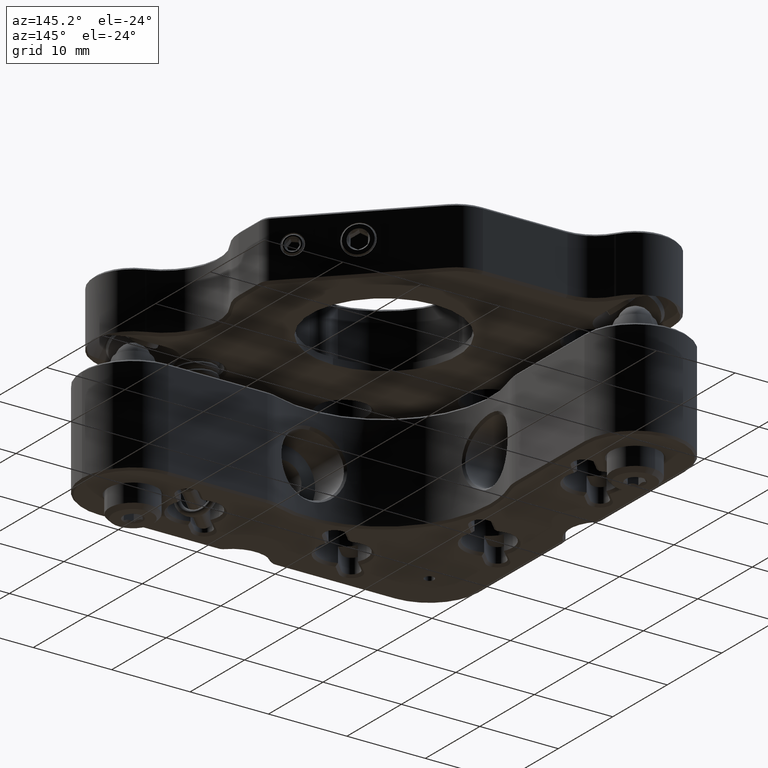
[diagram: clean part render]
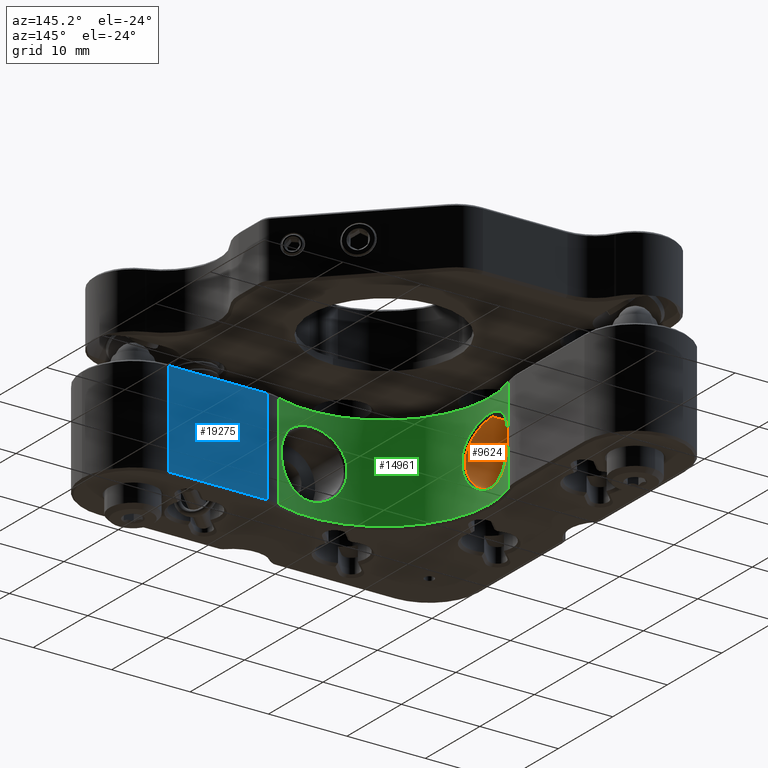
[diagram: same view with three faces highlighted in distinct colors, each labeled with its STEP entity id]
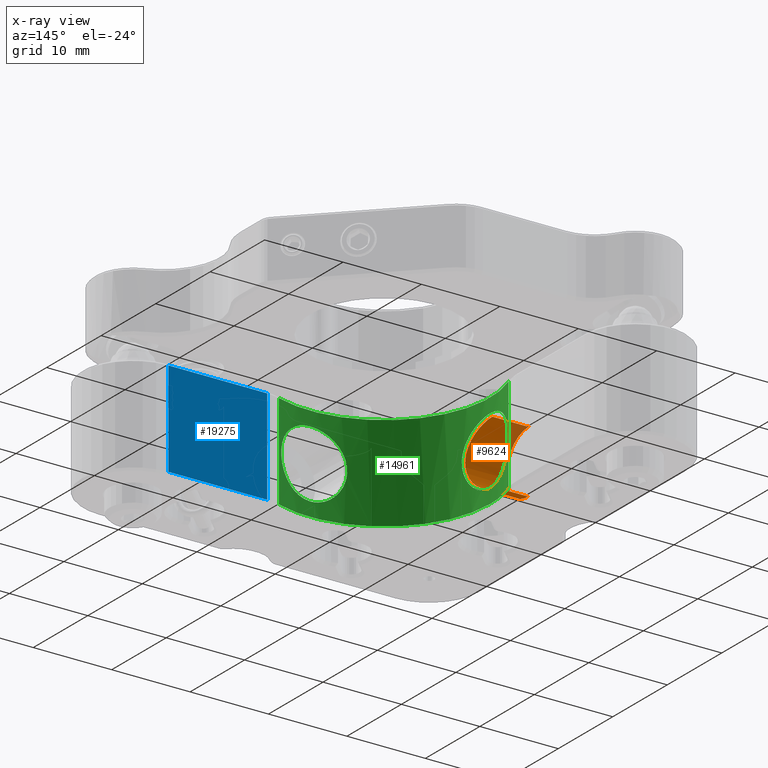
[diagram: x-ray of the same camera — body ghosted, the three highlighted faces saturated]
A machine part, auxiliary view with three faces highlighted in distinct colors.
The next image is the same camera in x-ray (body ghosted, the three faces saturated) — at least one of them is partly hidden behind the body in this view.
Their STEP definitions:

[orange] entity #9624 — the highlighted cylindrical surface (partial cylindrical patch) has radius 4 mm, axis along (1, 0, 0).
#78 = CARTESIAN_POINT ( 'NONE',  ( -13.57166400461005473, -2.326143352549041143, 3.254729315546407875 ) ) ;
#221 = CARTESIAN_POINT ( 'NONE',  ( -13.27806458843194726, -3.497233812875231163, -1.942444645300019923 ) ) ;
#367 = CARTESIAN_POINT ( 'NONE',  ( -13.42555148010303334, -2.970133300024092371, -2.679237460104181068 ) ) ;
#505 = CARTESIAN_POINT ( 'NONE',  ( -13.44422657971147395, -2.896174072448570502, -2.759102043015141170 ) ) ;
#651 = CARTESIAN_POINT ( 'NONE',  ( -13.20836817534865126, -3.718496972045392202, -1.474129643534868972 ) ) ;
#802 = CARTESIAN_POINT ( 'NONE',  ( -13.12205781214771072, -3.974134224172096719, -0.4587821613518011654 ) ) ;
#950 = CARTESIAN_POINT ( 'NONE',  ( -13.80000088772314015, -0.1318999269200013535, -3.999999999999994227 ) ) ;
#1122 = CARTESIAN_POINT ( 'NONE',  ( -13.67239728391914788, -1.741925273435980470, 3.600940616732140054 ) ) ;
#1173 = VERTEX_POINT ( 'NONE', #24544 ) ;
#1220 = CARTESIAN_POINT ( 'NONE',  ( -13.44979966849470365, -2.873656210754053308, -2.782483974404535765 ) ) ;
#1364 = CARTESIAN_POINT ( 'NONE',  ( -13.52441785086375248, -2.552663946782309345, -3.079604563427337904 ) ) ;
#1495 = CARTESIAN_POINT ( 'NONE',  ( -13.64047433250195596, -1.946309522186484120, -3.494584628816626459 ) ) ;
#1530 = CARTESIAN_POINT ( 'NONE',  ( -13.77828411483798554, -0.7206237387213708656, 3.934692721475355981 ) ) ;
#1658 = CARTESIAN_POINT ( 'NONE',  ( -13.68527048544076052, -1.652949305539173519, 3.643084754323268726 ) ) ;
#1797 = CARTESIAN_POINT ( 'NONE',  ( -13.54763019597272056, -2.444070682607322187, 3.166789444447637436 ) ) ;
#1925 = CARTESIAN_POINT ( 'NONE',  ( -13.20806596400888111, -3.719515770793843323, 1.473004173863139421 ) ) ;
#1949 = CARTESIAN_POINT ( 'NONE',  ( -12.39999999999999680, -2.144366948876982281E-15, 0.000000000000000000 ) ) ;
#2062 = CARTESIAN_POINT ( 'NONE',  ( -13.33083568880781122, -3.318838351041154766, 2.232798049113900341 ) ) ;
#2205 = CARTESIAN_POINT ( 'NONE',  ( -13.23267782768713197, -3.642964241691125871, 1.652224054136918419 ) ) ;
#2342 = CARTESIAN_POINT ( 'NONE',  ( -13.43032051876433819, -2.951426487396871856, 2.699834975180579910 ) ) ;
#2484 = CARTESIAN_POINT ( 'NONE',  ( -13.42169741406537042, -2.985179602886798733, -2.662487971333912018 ) ) ;
#2626 = CARTESIAN_POINT ( 'NONE',  ( -13.43262623173441561, -2.942428817025287024, -2.709827434204137298 ) ) ;
#2759 = CARTESIAN_POINT ( 'NONE',  ( -13.39873970703109585, -3.073171236683235552, -2.560548325497332467 ) ) ;
#2911 = CARTESIAN_POINT ( 'NONE',  ( -13.20241998374256198, -3.736765537712078977, -1.427762284986404895 ) ) ;
#3058 = CARTESIAN_POINT ( 'NONE',  ( -13.76989168038382338, -0.8500088274253908560, -3.909202059857344480 ) ) ;
#3199 = CARTESIAN_POINT ( 'NONE',  ( -13.69286520948214836, -1.596553117651938081, -3.667597281261249620 ) ) ;
#3333 = CARTESIAN_POINT ( 'NONE',  ( -13.79999999999997939, -1.997143452840186914E-15, -3.999999999999996447 ) ) ;
#3469 = CARTESIAN_POINT ( 'NONE',  ( -13.68693401291196743, -1.640361989098042317, -3.648424753567808043 ) ) ;
#3609 = CARTESIAN_POINT ( 'NONE',  ( -13.49159700096267045, -2.698766974664312368, -2.952400292712121566 ) ) ;
#3773 = CARTESIAN_POINT ( 'NONE',  ( -13.71626424065185823, -1.412347883708210183, 3.742507999668336804 ) ) ;
#3836 = ORIENTED_EDGE ( 'NONE', *, *, #27445, .T. ) ;
#3901 = CARTESIAN_POINT ( 'NONE',  ( -13.27409113733304835, -3.510144107424849835, 1.918105097676215731 ) ) ;
#4048 = CARTESIAN_POINT ( 'NONE',  ( -13.25968956291671752, -3.557083521685638683, 1.830807072488882747 ) ) ;
#4182 = CARTESIAN_POINT ( 'NONE',  ( -13.42916691746885327, -2.955961114565347714, 2.694868544222252194 ) ) ;
#4327 = CARTESIAN_POINT ( 'NONE',  ( -13.40662861591669142, -3.043222468528779867, 2.595970530244385177 ) ) ;
#4470 = CARTESIAN_POINT ( 'NONE',  ( -13.39631610983443899, -3.082250009018921322, 2.549468303811452508 ) ) ;
#4610 = CARTESIAN_POINT ( 'NONE',  ( -13.37307323835335993, -3.168538477778969575, -2.441816144970118341 ) ) ;
#4751 = CARTESIAN_POINT ( 'NONE',  ( -13.12486447330613082, -3.966118429387362809, -0.5236635682904977607 ) ) ;
#4900 = CARTESIAN_POINT ( 'NONE',  ( -13.11522360253787411, -3.993625832840725920, 0.2616532941229264275 ) ) ;
#5046 = CARTESIAN_POINT ( 'NONE',  ( -13.15179329221342819, -3.888215986786831113, -0.9430920296735196828 ) ) ;
#5200 = CARTESIAN_POINT ( 'NONE',  ( -13.39092058852652478, -3.102474183400438790, -2.524823739099941289 ) ) ;
#5309 = CARTESIAN_POINT ( 'NONE',  ( -13.79999999999997939, -1.997143452840186914E-15, -3.999999999999996447 ) ) ;
#5480 = CARTESIAN_POINT ( 'NONE',  ( -13.50858252632208512, -2.624416540349230331, -3.018985108877545898 ) ) ;
#5512 = CARTESIAN_POINT ( 'NONE',  ( -13.61681413622223680, -2.084882131390615623, 3.413844438652077429 ) ) ;
#5616 = CARTESIAN_POINT ( 'NONE',  ( -13.47345681060055433, -2.776176237142022440, -2.879912820770353044 ) ) ;
#5746 = CARTESIAN_POINT ( 'NONE',  ( -13.60170378645692857, -2.169166048320642748, -3.361464169986446038 ) ) ;
#5782 = CARTESIAN_POINT ( 'NONE',  ( -12.39999999999999680, -2.144366948876982281E-15, -3.999999999999995559 ) ) ;
#5876 = CARTESIAN_POINT ( 'NONE',  ( -13.79122984857118084, -0.4623326118401305251, -3.973745447702127009 ) ) ;
#6032 = VERTEX_POINT ( 'NONE', #5309 ) ;
#6039 = CARTESIAN_POINT ( 'NONE',  ( -13.46679122548377627, -2.803940587527459893, 2.852731183550698990 ) ) ;
#6182 = CARTESIAN_POINT ( 'NONE',  ( -13.29283708508410555, -3.448259552998462318, 2.027452497508413387 ) ) ;
#6205 = DIRECTION ( 'NONE',  ( 0.000000000000000000, 0.000000000000000000, -1.000000000000000000 ) ) ;
#6324 = CARTESIAN_POINT ( 'NONE',  ( -13.42091622204998025, -2.988315054724355324, 2.659199640835711698 ) ) ;
#6458 = CARTESIAN_POINT ( 'NONE',  ( -13.47676346315072671, -2.762174747040058609, 2.893208683928066183 ) ) ;
#6596 = CARTESIAN_POINT ( 'NONE',  ( -13.43300507305069758, -2.940850267267360429, 2.711366541133486852 ) ) ;
#6622 = DIRECTION ( 'NONE',  ( 1.000000000000000000, -0.000000000000000000, -0.000000000000000000 ) ) ;
#6737 = CARTESIAN_POINT ( 'NONE',  ( -13.16618336199114836, -3.845821352991557251, 1.101862342932082406 ) ) ;
#6875 = CARTESIAN_POINT ( 'NONE',  ( -13.42633157843720682, -2.967080237152701638, -2.682618134180745351 ) ) ;
#7027 = CARTESIAN_POINT ( 'NONE',  ( -13.17913131964797735, -3.807246030932696534, -1.228369034470118359 ) ) ;
#7172 = CARTESIAN_POINT ( 'NONE',  ( -13.33856105475765119, -3.292031303603973669, -2.272843367697755745 ) ) ;
#7311 = CARTESIAN_POINT ( 'NONE',  ( -13.14947464185156356, -3.894934756390884711, 0.9113361903775930584 ) ) ;
#7455 = CARTESIAN_POINT ( 'NONE',  ( -13.64493909759149837, -1.919042278035010707, -3.509632348156913384 ) ) ;
#7488 = CARTESIAN_POINT ( 'NONE',  ( -13.72713009783129579, -1.319998041990355864, 3.776915524480582320 ) ) ;
#7558 = CIRCLE ( 'NONE', #9831, 3.999999999999998224 ) ;
#7627 = CARTESIAN_POINT ( 'NONE',  ( -13.76289572295192976, -0.9444822865710891246, 3.887865049744031243 ) ) ;
#7667 = ORIENTED_EDGE ( 'NONE', *, *, #15128, .F. ) ;
#7730 = CARTESIAN_POINT ( 'NONE',  ( -13.45961718699646248, -2.833580630045356319, -2.823268561986767899 ) ) ;
#7861 = CARTESIAN_POINT ( 'NONE',  ( -13.69852974314882310, -1.553952472161300946, -3.685853635257514860 ) ) ;
#7996 = CARTESIAN_POINT ( 'NONE',  ( -13.58262093854655106, -2.269594454988866250, -3.293833816947800308 ) ) ;
#8033 = CARTESIAN_POINT ( 'NONE',  ( -13.74581110289778962, -1.136922583144321930, 3.835155649733159144 ) ) ;
#8037 = VECTOR ( 'NONE', #14302, 1000.000000000000000 ) ;
#8162 = CARTESIAN_POINT ( 'NONE',  ( -13.40260586794795472, -3.058524751781868556, 2.577950104038224666 ) ) ;
#8297 = CARTESIAN_POINT ( 'NONE',  ( -13.30778673207753826, -3.398128963357720966, 2.111148939886156040 ) ) ;
#8438 = CARTESIAN_POINT ( 'NONE',  ( -13.59190641964755741, -2.220923878748073843, 3.326792845172665825 ) ) ;
#8587 = CARTESIAN_POINT ( 'NONE',  ( -13.48513775838291018, -2.726659408463888212, 2.926839892786377018 ) ) ;
#8722 = CARTESIAN_POINT ( 'NONE',  ( -13.55581183652489408, -2.404359298001171652, 3.196890335879011058 ) ) ;
#8863 = CARTESIAN_POINT ( 'NONE',  ( -13.16043488999975786, -3.862773226042596431, -1.039275370480061467 ) ) ;
#9006 = CARTESIAN_POINT ( 'NONE',  ( -13.17905858073679326, -3.807432708180876535, 1.226579399311761964 ) ) ;
#9150 = CARTESIAN_POINT ( 'NONE',  ( -13.31029480528192721, -3.389527748833155663, -2.124408996753734957 ) ) ;
#9295 = CARTESIAN_POINT ( 'NONE',  ( -13.13564736902080377, -3.935112394590011942, -0.7204718084343165740 ) ) ;
#9445 = CARTESIAN_POINT ( 'NONE',  ( -13.13106287530230354, -3.948400795642535765, 0.6541752675658728533 ) ) ;
#9587 = CARTESIAN_POINT ( 'NONE',  ( -13.57404775751621706, -2.313727632141954871, -3.263180126834151373 ) ) ;
#9624 = ADVANCED_FACE ( 'NONE', ( #17278 ), #19674, .F. ) ;
#9759 = CARTESIAN_POINT ( 'NONE',  ( -13.66576787522298808, -1.786573759843854914, 3.579122224184651646 ) ) ;
#9831 = AXIS2_PLACEMENT_3D ( 'NONE', #19681, #18000, #21674 ) ;
#9868 = CARTESIAN_POINT ( 'NONE',  ( -13.46727564614021233, -2.802060459864092579, -2.854825568019124571 ) ) ;
#9903 = CARTESIAN_POINT ( 'NONE',  ( -13.60012518795196712, -2.177020779318024069, 3.355754665690037886 ) ) ;
#10006 = CARTESIAN_POINT ( 'NONE',  ( -13.72001106511574697, -1.382602112059601263, -3.754462295643715919 ) ) ;
#10137 = CARTESIAN_POINT ( 'NONE',  ( -13.49271167316750208, -2.693940935430762185, -2.956804509661709268 ) ) ;
#10170 = CARTESIAN_POINT ( 'NONE',  ( -13.79781321186610832, -0.2631424943829228646, 3.993487035541912533 ) ) ;
#10439 = CARTESIAN_POINT ( 'NONE',  ( -13.53031922614530203, -2.525459533165777870, 3.101956087724513811 ) ) ;
#10576 = CARTESIAN_POINT ( 'NONE',  ( -13.19633884184931638, -3.755397183668096606, 1.380023072014205932 ) ) ;
#10594 = CARTESIAN_POINT ( 'NONE',  ( -13.80000000185195397, -7.215996806823236693E-13, 4.000000000027571723 ) ) ;
#10716 = CARTESIAN_POINT ( 'NONE',  ( -13.53763772477006100, -2.491341083909849985, 3.129496945699880239 ) ) ;
#10862 = CARTESIAN_POINT ( 'NONE',  ( -13.50476749550221456, -2.641202636354975652, 3.004089956344579093 ) ) ;
#10998 = CARTESIAN_POINT ( 'NONE',  ( -13.16647304518895467, -3.844923497524841416, -1.103482482733344039 ) ) ;
#11135 = CARTESIAN_POINT ( 'NONE',  ( -13.26698767488752750, -3.533304895767582110, -1.875097326785492680 ) ) ;
#11281 = CARTESIAN_POINT ( 'NONE',  ( -13.34854222041565919, -3.256940858550043227, -2.323054156426411332 ) ) ;
#11421 = CARTESIAN_POINT ( 'NONE',  ( -13.28750999018398815, -3.466112421796022414, -1.997586664235592835 ) ) ;
#11536 = CARTESIAN_POINT ( 'NONE',  ( -18.39999999999999503, -2.144366948876982281E-15, -3.999999999999998224 ) ) ;
#11571 = CARTESIAN_POINT ( 'NONE',  ( -13.24566856102838130, -3.601885400606736010, -1.739965455040130005 ) ) ;
#11725 = CARTESIAN_POINT ( 'NONE',  ( -13.48178902512324839, -2.740870505262400503, -2.913398696043848268 ) ) ;
#11860 = CARTESIAN_POINT ( 'NONE',  ( -13.78859813327916939, -0.5257167359180743293, -3.965844097551931569 ) ) ;
#11894 = CARTESIAN_POINT ( 'NONE',  ( -13.77618569667274073, -0.7545004696701954616, 3.928328923384498239 ) ) ;
#11997 = CARTESIAN_POINT ( 'NONE',  ( -13.45819134933974226, -2.839437114035035403, -2.817381441024948252 ) ) ;
#12036 = CARTESIAN_POINT ( 'NONE',  ( -13.70466920333310057, -1.506584565060810954, 3.705563409984821366 ) ) ;
#12140 = CARTESIAN_POINT ( 'NONE',  ( -13.70864590618863232, -1.475993068445078382, -3.718334218751519593 ) ) ;
#12169 = CARTESIAN_POINT ( 'NONE',  ( -13.76993240031077015, -0.8493192922340805362, 3.909323866855511032 ) ) ;
#12274 = CARTESIAN_POINT ( 'NONE',  ( -13.77843746785677226, -0.7202835677616580279, -3.935170559646243404 ) ) ;
#12305 = AXIS2_PLACEMENT_3D ( 'NONE', #1949, #6622, #6205 ) ;
#12433 = CARTESIAN_POINT ( 'NONE',  ( -13.70876611009119372, -1.474006178493159291, 3.718655463734242161 ) ) ;
#12573 = CARTESIAN_POINT ( 'NONE',  ( -13.35394815950518677, -3.237521953038961176, 2.349362803870628014 ) ) ;
#12705 = CARTESIAN_POINT ( 'NONE',  ( -13.23697763434474517, -3.629427594327665929, 1.681765242403961969 ) ) ;
#12838 = CARTESIAN_POINT ( 'NONE',  ( -13.58155063264124074, -2.275612037223874839, 3.290138977111827234 ) ) ;
#12984 = CARTESIAN_POINT ( 'NONE',  ( -13.47234650672643852, -2.780789149993271092, 2.875376466163177991 ) ) ;
#13005 = EDGE_CURVE ( 'NONE', #1173, #21646, #19922, .T. ) ;
#13127 = CARTESIAN_POINT ( 'NONE',  ( -13.39541259858229694, -3.085647719384466914, 2.545360627286501920 ) ) ;
#13271 = CARTESIAN_POINT ( 'NONE',  ( -13.38336180470950509, -3.130608836602443823, -2.489948180295561198 ) ) ;
#13420 = CARTESIAN_POINT ( 'NONE',  ( -13.32822084133831275, -3.327912483715582681, -2.219245335992317880 ) ) ;
#13567 = CARTESIAN_POINT ( 'NONE',  ( -13.15721792287182623, -3.872297541642238716, 1.006372381853581022 ) ) ;
#13713 = CARTESIAN_POINT ( 'NONE',  ( -13.32658856296541217, -3.333565648589437824, -2.210749895776436880 ) ) ;
#13860 = CARTESIAN_POINT ( 'NONE',  ( -13.13160139352779687, -3.946775270990888096, -0.6536695564087539045 ) ) ;
#14032 = CARTESIAN_POINT ( 'NONE',  ( -13.80000000185195397, -7.215996806823236693E-13, 4.000000000027571723 ) ) ;
#14135 = CARTESIAN_POINT ( 'NONE',  ( -13.76531145587326499, -0.9118422071732141809, -3.895233129187047449 ) ) ;
#14169 = CARTESIAN_POINT ( 'NONE',  ( -13.60927612260312536, -2.127204416520068531, 3.387769949918046031 ) ) ;
#14267 = CARTESIAN_POINT ( 'NONE',  ( -13.64691679577734362, -1.906845958993369061, -3.516279977745587093 ) ) ;
#14302 = DIRECTION ( 'NONE',  ( 1.000000000000000000, -0.000000000000000000, -0.000000000000000000 ) ) ;
#14408 = CARTESIAN_POINT ( 'NONE',  ( -13.73979206207085291, -1.198265838331111555, -3.816447078878007826 ) ) ;
#14547 = CARTESIAN_POINT ( 'NONE',  ( -13.68071802820306004, -1.684441137840288816, -3.628184555909765407 ) ) ;
#14711 = CARTESIAN_POINT ( 'NONE',  ( -13.45129032410401670, -2.867878262657139299, 2.788980377063110527 ) ) ;
#14853 = CARTESIAN_POINT ( 'NONE',  ( -13.50038854340882999, -2.660457518737382454, 2.986978598716801603 ) ) ;
#14993 = CARTESIAN_POINT ( 'NONE',  ( -13.38157015669864336, -3.137545158454561278, 2.482155298921604469 ) ) ;
#15084 = ORIENTED_EDGE ( 'NONE', *, *, #27415, .F. ) ;
#15128 = EDGE_CURVE ( 'NONE', #1173, #27650, #7558, .T. ) ;
#15130 = CARTESIAN_POINT ( 'NONE',  ( -13.46266038621416961, -2.821042580138922506, 2.835796581278346551 ) ) ;
#15274 = CARTESIAN_POINT ( 'NONE',  ( -13.42755938781309055, -2.962268498643760850, 2.687929645987681582 ) ) ;
#15422 = CARTESIAN_POINT ( 'NONE',  ( -13.32382580127229943, -3.343109406631850522, -2.196291085084276951 ) ) ;
#15560 = CARTESIAN_POINT ( 'NONE',  ( -13.26432119425893674, -3.541959477035993231, -1.858710572654043158 ) ) ;
#15691 = CARTESIAN_POINT ( 'NONE',  ( -12.39999999999999680, -1.654508229218041491E-15, 3.999999999999995559 ) ) ;
#15705 = CARTESIAN_POINT ( 'NONE',  ( -13.23249858506547660, -3.643619232444632594, -1.651748099531963554 ) ) ;
#15844 = CARTESIAN_POINT ( 'NONE',  ( -13.12434885861939193, -3.967601840412546377, 0.5250194044158079665 ) ) ;
#15989 = CARTESIAN_POINT ( 'NONE',  ( -13.41644638987617810, -3.005567838207274356, -2.639524334044906162 ) ) ;
#16131 = CARTESIAN_POINT ( 'NONE',  ( -13.53896488719222191, -2.485677465129224828, -3.134735722371103872 ) ) ;
#16274 = CARTESIAN_POINT ( 'NONE',  ( -13.45276092121372891, -2.861644611654163839, -2.794861917339685142 ) ) ;
#16306 = CARTESIAN_POINT ( 'NONE',  ( -13.64071826967272472, -1.945562377460918757, 3.495508876435428736 ) ) ;
#16405 = CARTESIAN_POINT ( 'NONE',  ( -13.52541531719981727, -2.548089826580195005, -3.083394050173202228 ) ) ;
#16437 = LINE ( 'NONE', #5782, #8037 ) ;
#16541 = CARTESIAN_POINT ( 'NONE',  ( -13.73675932595239679, -1.227954699693074136, -3.806991740167935845 ) ) ;
#16676 = CARTESIAN_POINT ( 'NONE',  ( -13.45598423642385555, -2.848476354102012387, -2.808242113656355343 ) ) ;
#16712 = CARTESIAN_POINT ( 'NONE',  ( -13.73685193902609925, -1.228195706442949398, 3.807306472777061579 ) ) ;
#16842 = CARTESIAN_POINT ( 'NONE',  ( -13.31832863730071992, -3.362242486325457413, 2.167979170824126722 ) ) ;
#16975 = CARTESIAN_POINT ( 'NONE',  ( -13.53325940342068989, -2.511787976307345627, 3.113036875128036396 ) ) ;
#17121 = CARTESIAN_POINT ( 'NONE',  ( -13.44368583363800340, -2.898401417644417055, 2.756869713252309673 ) ) ;
#17261 = CARTESIAN_POINT ( 'NONE',  ( -13.52860341012047307, -2.533398916369168141, 3.095471543125587033 ) ) ;
#17278 = FACE_OUTER_BOUND ( 'NONE', #18533, .T. ) ;
#17394 = CARTESIAN_POINT ( 'NONE',  ( -13.46210948605063784, -2.823319019906562755, 2.833534670994067639 ) ) ;
#17530 = CARTESIAN_POINT ( 'NONE',  ( -13.31970902768183862, -3.357298271013504198, -2.174641692153671535 ) ) ;
#17679 = CARTESIAN_POINT ( 'NONE',  ( -13.30255389918681530, -3.415680903928008050, -2.081873174080659084 ) ) ;
#17819 = CARTESIAN_POINT ( 'NONE',  ( -13.40387825931566113, -3.053745437662256812, -2.583735411281619765 ) ) ;
#17968 = CARTESIAN_POINT ( 'NONE',  ( -13.16982124261553011, -3.834986774959524336, -1.137488304164046449 ) ) ;
#18000 = DIRECTION ( 'NONE',  ( 1.000000000000000000, -0.000000000000000000, -0.000000000000000000 ) ) ;
#18117 = CARTESIAN_POINT ( 'NONE',  ( -13.17596357317653144, -3.816687179107415950, 1.197501399711694337 ) ) ;
#18254 = CARTESIAN_POINT ( 'NONE',  ( -13.52186902720958628, -2.564320905628411751, -3.069904849542052894 ) ) ;
#18395 = CARTESIAN_POINT ( 'NONE',  ( -13.48989563227517507, -2.706122696926300808, -2.945671242210908591 ) ) ;
#18431 = CARTESIAN_POINT ( 'NONE',  ( -13.65884925462382071, -1.831419510338042844, 3.556147814512123695 ) ) ;
#18533 = EDGE_LOOP ( 'NONE', ( #7667, #26957, #3836, #15084 ) ) ;
#18536 = CARTESIAN_POINT ( 'NONE',  ( -13.49304916788459430, -2.692478921766018551, -2.958137439392562573 ) ) ;
#18570 = CARTESIAN_POINT ( 'NONE',  ( -13.59612694765244001, -2.198456946849226767, 3.341685293746972540 ) ) ;
#18667 = CARTESIAN_POINT ( 'NONE',  ( -13.58954484747020963, -2.233397359543703331, -3.318434876074427553 ) ) ;
#18793 = CARTESIAN_POINT ( 'NONE',  ( -13.66790634126694215, -1.772906343645438643, -3.586232503760063306 ) ) ;
#18964 = CARTESIAN_POINT ( 'NONE',  ( -13.42778669170517070, -2.961377015896269338, 2.688911789099435623 ) ) ;
#19093 = CARTESIAN_POINT ( 'NONE',  ( -13.51461938069546243, -2.597385791553930456, 3.042277482749120576 ) ) ;
#19232 = CARTESIAN_POINT ( 'NONE',  ( -13.18581080688861640, -3.787152576025732742, 1.287833924092398608 ) ) ;
#19378 = CARTESIAN_POINT ( 'NONE',  ( -13.33765654232491293, -3.295061151912515474, 2.267807808223464061 ) ) ;
#19514 = CARTESIAN_POINT ( 'NONE',  ( -13.41496692726666495, -3.011317761726326925, 2.633064618526188561 ) ) ;
#19654 = CARTESIAN_POINT ( 'NONE',  ( -13.25953386944220469, -3.557438969459391309, -1.828909486123548200 ) ) ;
#19674 = CYLINDRICAL_SURFACE ( 'NONE', #12305, 3.999999999999995559 ) ;
#19681 = CARTESIAN_POINT ( 'NONE',  ( -18.39999999999999503, -2.144366948876982281E-15, 0.000000000000000000 ) ) ;
#19792 = CARTESIAN_POINT ( 'NONE',  ( -13.14235861037038866, -3.915656998620340890, 0.8177674803318859542 ) ) ;
#19922 = LINE ( 'NONE', #15691, #21511 ) ;
#19936 = CARTESIAN_POINT ( 'NONE',  ( -13.44097707606240100, -2.909180235330839803, -2.745347587276870449 ) ) ;
#20077 = CARTESIAN_POINT ( 'NONE',  ( -13.11298964590382710, -3.999944635416532002, -0.1322145686444387569 ) ) ;
#20221 = CARTESIAN_POINT ( 'NONE',  ( -13.38788226503395329, -3.113802480456259847, -2.510839517948781907 ) ) ;
#20373 = CARTESIAN_POINT ( 'NONE',  ( -13.69675605427588927, -1.567411476391654235, -3.680145776823897208 ) ) ;
#20652 = CARTESIAN_POINT ( 'NONE',  ( -13.58619797019321140, -2.250942599744533368, -3.306556108540518402 ) ) ;
#20657 = B_SPLINE_CURVE_WITH_KNOTS ( 'NONE', 3,
 ( #14032, #22955, #10170, #22678, #23225, #20960, #1530, #11894, #12169, #7627, #27490, #20830, #8033, #16712, #7488, #3773, #12433, #12036, #21091, #1658, #1122, #9759, #18431, #20689, #27074, #16306, #24947, #5512, #14169, #9903, #18570, #27216, #8438, #12838, #78, #8722, #1797, #10716, #16975, #10439, #17261, #26045, #19093, #10862, #14853, #25485, #23912, #27890, #8587, #6458, #12984, #6039, #27751, #15130, #17394, #14711, #17121, #25766, #6596, #2342, #4182, #25904, #18964, #15274, #23767, #6324, #19514, #4327, #8162, #21501, #4470, #13127, #14993, #23634, #12573, #27623, #19378, #25626, #21787, #2062, #16842, #8297, #6182, #28035, #23356, #3901, #23500, #4048, #21648, #12705, #2205, #21225, #21355, #1925, #10576, #19232, #9006, #18117, #6737, #13567, #7311, #26471, #19792, #9445, #15844, #4900, #24342, #20077, #22351, #802, #4751, #13860, #9295, #22498, #5046, #8863, #10998, #17968, #7027, #26189, #2911, #651, #26619, #22210, #26327, #15705, #11571, #24490, #19654, #15560, #11135, #221, #11421, #17679, #9150, #17530, #15422, #13713, #13420, #7172, #11281, #24051, #4610, #13271, #20221, #5200, #26762, #2759, #17819, #21928, #15989, #2484, #24633, #367, #6875, #24198, #22069, #2626, #19936, #505, #1220, #16274, #16676, #11997, #7730, #9868, #5616, #11725, #24915, #18395, #3609, #10137, #18536, #27181, #5480, #25052, #18254, #1364, #16405, #16131, #25183, #27038, #9587, #7996, #20652, #20797, #18667, #5746, #26902, #22643, #27314, #1495, #7455, #14267, #22916, #18793, #14547, #3469, #3199, #20373, #7861, #12140, #10006, #24777, #16541, #14408, #27449, #25320, #14135, #3058, #12274, #22781, #11860, #5876, #23061, #950, #3333 ),
 .UNSPECIFIED., .F., .F.,
 ( 4, 2, 1, 2, 2, 1, 2, 2, 1, 2, 2, 2, 1, 2, 2, 2, 1, 1, 2, 2, 2, 1, 1, 2, 2, 1, 1, 2, 2, 2, 1, 1, 2, 2, 2, 2, 1, 1, 2, 2, 2, 1, 2, 2, 2, 1, 1, 2, 2, 2, 1, 2, 2, 2, 2, 2, 1, 2, 2, 1, 2, 2, 2, 2, 2, 2, 2, 1, 2, 2, 1, 1, 2, 2, 2, 1, 2, 2, 2, 1, 1, 2, 2, 2, 1, 1, 2, 2, 2, 1, 1, 1, 2, 2, 2, 2, 1, 2, 2, 2, 1, 1, 2, 2, 1, 1, 2, 2, 2, 1, 1, 2, 2, 2, 1, 2, 2, 2, 1, 2, 2, 1, 2, 2, 2, 2, 2, 2, 4 ),
 ( 0.5000371340795907171, 0.5156609736396059462, 0.5234728934196135608, 0.5273788533096173126, 0.5312848131996210643, 0.5390967329796287899, 0.5430026928696325417, 0.5469086527596364045, 0.5547205725396439080, 0.5586265324296476598, 0.5625324923196515225, 0.5703444120996590261, 0.5742503719896627778, 0.5762033519346646537, 0.5781563318796665296, 0.5859682516596742552, 0.5898742115496781180, 0.5918271914946799939, 0.5928036814671808763, 0.5937801714396817587, 0.6015920912196892623, 0.6054980511096930140, 0.6074510310546948899, 0.6084275210271958834, 0.6094040109996967658, 0.6133099708897004065, 0.6152629508347022824, 0.6162394408072031649, 0.6172159307797041583, 0.6211218906697082431, 0.6230748706147102300, 0.6240513605872112235, 0.6245396055734617757, 0.6250278505597123280, 0.6289338104497164128, 0.6308867903947185107, 0.6318632803672196152, 0.6323515253534701674, 0.6325956478465952770, 0.6328397703397204976, 0.6367457302297240274, 0.6386987101747257922, 0.6396752001472266747, 0.6406516901197275571, 0.6484636098997345055, 0.6523695697897380352, 0.6543225497347398001, 0.6552990397072406825, 0.6562755296797415649, 0.6640874494597489575, 0.6679934093497525982, 0.6699463892947545851, 0.6718993692397564610, 0.6797112890197640755, 0.6836172489097678273, 0.6875232087997715791, 0.6953351285797791936, 0.6992410884697830564, 0.7031470483597868082, 0.7109589681397944227, 0.7148649280297981745, 0.7187708879198019263, 0.7343947274798170444, 0.7500185670398321625, 0.7656424065998472805, 0.7734543263798547841, 0.7812662461598623986, 0.7890781659398699022, 0.7929841258298737650, 0.7968900857198775167, 0.8047020054998850203, 0.8086079653898887720, 0.8105609453348906479, 0.8125139252798925238, 0.8203258450599000273, 0.8242318049499038901, 0.8261847848949057660, 0.8281377648399077529, 0.8359496846199154785, 0.8398556445099192302, 0.8418086244549212172, 0.8427851144274220996, 0.8437616043999229820, 0.8515735241799308186, 0.8554794840699346814, 0.8574324640149365573, 0.8584089539874375507, 0.8593854439599384332, 0.8632914038499417408, 0.8652443837949433947, 0.8662208737674441661, 0.8667091187536946073, 0.8669532412468198279, 0.8671973637399449375, 0.8711033236299470239, 0.8730563035749481227, 0.8740327935474485610, 0.8745210385336990022, 0.8750092835199492214, 0.8789152434099511968, 0.8808682233549520735, 0.8818447133274526228, 0.8823329583137028420, 0.8828212032999531722, 0.8867271631899549256, 0.8886801431349559133, 0.8896566331074563516, 0.8906331230799566789, 0.8984450428599599636, 0.9023510027499614949, 0.9043039826949623716, 0.9052804726674626989, 0.9062569626399631373, 0.9140688824199661999, 0.9179748423099678423, 0.9199278222549686079, 0.9218808021999693736, 0.9296927219799724362, 0.9335986818699740786, 0.9355516618149748442, 0.9375046417599756099, 0.9453165615399787836, 0.9492225214299803149, 0.9531284813199818462, 0.9609404010999849088, 0.9687523208799878605, 0.9765642406599909231, 0.9843761604399939857, 1.000000000000000000 ),
 .UNSPECIFIED. ) ;
#20689 = CARTESIAN_POINT ( 'NONE',  ( -13.65417257157925235, -1.861355420657670123, 3.540570674269118978 ) ) ;
#20797 = CARTESIAN_POINT ( 'NONE',  ( -13.58856106044766499, -2.238567487625764407, -3.314946679754617431 ) ) ;
#20830 = CARTESIAN_POINT ( 'NONE',  ( -13.74894834786273812, -1.103642131758481693, 3.844875366955082807 ) ) ;
#20960 = CARTESIAN_POINT ( 'NONE',  ( -13.78206211463784570, -0.6551196711224367419, 3.946127671749654731 ) ) ;
#21091 = CARTESIAN_POINT ( 'NONE',  ( -13.69333846529425003, -1.594061068663258807, 3.669190409036231504 ) ) ;
#21225 = CARTESIAN_POINT ( 'NONE',  ( -13.22434774665721058, -3.669041076284115910, 1.593477446294339739 ) ) ;
#21355 = CARTESIAN_POINT ( 'NONE',  ( -13.22059247763434975, -3.680729832304135751, 1.566321364834480478 ) ) ;
#21501 = CARTESIAN_POINT ( 'NONE',  ( -13.39880273153859136, -3.072883675107221269, 2.560749825636218890 ) ) ;
#21511 = VECTOR ( 'NONE', #26747, 1000.000000000000000 ) ;
#21646 = VERTEX_POINT ( 'NONE', #10594 ) ;
#21648 = CARTESIAN_POINT ( 'NONE',  ( -13.25028135274555119, -3.587264158484984922, 1.770833653777142302 ) ) ;
#21674 = DIRECTION ( 'NONE',  ( 0.000000000000000000, 0.000000000000000000, -1.000000000000000000 ) ) ;
#21787 = CARTESIAN_POINT ( 'NONE',  ( -13.33176876074502459, -3.315592936927295398, 2.237609502530924832 ) ) ;
#21928 = CARTESIAN_POINT ( 'NONE',  ( -13.41216116655407298, -3.022052867295266676, -2.620583701327025228 ) ) ;
#22069 = CARTESIAN_POINT ( 'NONE',  ( -13.42892255767474197, -2.956925275368588402, -2.693827816403666642 ) ) ;
#22210 = CARTESIAN_POINT ( 'NONE',  ( -13.21459784099019785, -3.699291734763342721, -1.521671091694822397 ) ) ;
#22351 = CARTESIAN_POINT ( 'NONE',  ( -13.11532322552968388, -3.993344437972198513, -0.2647561386613473955 ) ) ;
#22498 = CARTESIAN_POINT ( 'NONE',  ( -13.14439859941948185, -3.909742545876186082, -0.8474092339419788678 ) ) ;
#22643 = CARTESIAN_POINT ( 'NONE',  ( -13.62657689020111995, -2.028935083607775969, -3.447387437745125460 ) ) ;
#22678 = CARTESIAN_POINT ( 'NONE',  ( -13.79136173122245523, -0.4588123764668476934, 3.974139765037040473 ) ) ;
#22781 = CARTESIAN_POINT ( 'NONE',  ( -13.78217875843584217, -0.6553904749458180357, -3.946487149081084667 ) ) ;
#22916 = CARTESIAN_POINT ( 'NONE',  ( -13.65885892661845524, -1.832293439591859086, -3.556301877345410922 ) ) ;
#22955 = CARTESIAN_POINT ( 'NONE',  ( -13.80000050380961696, -0.1309837251600030339, 3.999999999999973355 ) ) ;
#23061 = CARTESIAN_POINT ( 'NONE',  ( -13.79780846083133383, -0.2642168236283852778, -3.993470518049308193 ) ) ;
#23225 = CARTESIAN_POINT ( 'NONE',  ( -13.78732223777464228, -0.5568844285752618806, 3.962014137277129588 ) ) ;
#23356 = CARTESIAN_POINT ( 'NONE',  ( -13.27864274757684981, -3.495218515779505264, 1.945170004799831487 ) ) ;
#23500 = CARTESIAN_POINT ( 'NONE',  ( -13.27212365634396285, -3.516576395002894539, 1.906301147619679615 ) ) ;
#23634 = CARTESIAN_POINT ( 'NONE',  ( -13.37005051010572565, -3.179681792836538623, 2.427723134705468855 ) ) ;
#23767 = CARTESIAN_POINT ( 'NONE',  ( -13.42765216959163688, -2.961904893034889685, 2.688331221148311911 ) ) ;
#23912 = CARTESIAN_POINT ( 'NONE',  ( -13.49555431902140867, -2.681594550510883579, 2.968011372620003918 ) ) ;
#24051 = CARTESIAN_POINT ( 'NONE',  ( -13.36469876616392227, -3.198906189504598707, -2.401678638618171213 ) ) ;
#24198 = CARTESIAN_POINT ( 'NONE',  ( -13.42696743169692652, -2.964588912076960625, -2.685370185491530837 ) ) ;
#24342 = CARTESIAN_POINT ( 'NONE',  ( -13.11295195639239530, -4.000054654154971523, 0.1288430919081871850 ) ) ;
#24490 = CARTESIAN_POINT ( 'NONE',  ( -13.25245221542438756, -3.580255609662795990, -1.784294847144951346 ) ) ;
#24544 = CARTESIAN_POINT ( 'NONE',  ( -18.39999999999999503, -1.654508229218041294E-15, 3.999999999999998224 ) ) ;
#24633 = CARTESIAN_POINT ( 'NONE',  ( -13.42438582540498260, -2.974691639280005351, -2.674181277309296334 ) ) ;
#24777 = CARTESIAN_POINT ( 'NONE',  ( -13.73021486896186616, -1.289727915328241936, -3.786510366898296009 ) ) ;
#24915 = CARTESIAN_POINT ( 'NONE',  ( -13.48572024934264135, -2.724096564116718522, -2.929104677942439672 ) ) ;
#24947 = CARTESIAN_POINT ( 'NONE',  ( -13.63148263725605425, -2.000821822310116183, 3.464243272028977749 ) ) ;
#25052 = CARTESIAN_POINT ( 'NONE',  ( -13.51799330308800862, -2.581983925561064375, -3.055123359170217157 ) ) ;
#25183 = CARTESIAN_POINT ( 'NONE',  ( -13.55031782908831950, -2.431453604872141128, -3.176840122607559547 ) ) ;
#25320 = CARTESIAN_POINT ( 'NONE',  ( -13.75489561648317860, -1.038992517389088155, -3.863261820056767437 ) ) ;
#25485 = CARTESIAN_POINT ( 'NONE',  ( -13.49743441632836749, -2.673397243080829710, 2.975402920427128617 ) ) ;
#25626 = CARTESIAN_POINT ( 'NONE',  ( -13.33410915938587138, -3.307440728371032979, 2.249641890953168133 ) ) ;
#25766 = CARTESIAN_POINT ( 'NONE',  ( -13.43529791150213271, -2.931791855423213633, 2.721187583553708045 ) ) ;
#25904 = CARTESIAN_POINT ( 'NONE',  ( -13.42815123202425553, -2.959947144435853161, 2.690486333259834328 ) ) ;
#26045 = CARTESIAN_POINT ( 'NONE',  ( -13.52243699139029509, -2.561827500468990770, 3.072117536490663880 ) ) ;
#26189 = CARTESIAN_POINT ( 'NONE',  ( -13.18923718319725680, -3.776928194922029913, -1.319960998299114063 ) ) ;
#26327 = CARTESIAN_POINT ( 'NONE',  ( -13.22424837819565013, -3.669407289098205460, -1.593526325393662013 ) ) ;
#26471 = CARTESIAN_POINT ( 'NONE',  ( -13.14458404519340817, -3.909190616757353354, 0.8481032544979029142 ) ) ;
#26619 = CARTESIAN_POINT ( 'NONE',  ( -13.21239995196244443, -3.706080064017484688, -1.505074249381451956 ) ) ;
#26747 = DIRECTION ( 'NONE',  ( 1.000000000000000000, -0.000000000000000000, -0.000000000000000000 ) ) ;
#26762 = CARTESIAN_POINT ( 'NONE',  ( -13.39279574901838110, -3.095459314361769465, -2.533412906871868930 ) ) ;
#26902 = CARTESIAN_POINT ( 'NONE',  ( -13.61197504205521369, -2.112615666742413634, -3.397217379312693186 ) ) ;
#26957 = ORIENTED_EDGE ( 'NONE', *, *, #13005, .T. ) ;
#27038 = CARTESIAN_POINT ( 'NONE',  ( -13.56631056145342207, -2.352563112340824603, -3.235199646353679626 ) ) ;
#27074 = CARTESIAN_POINT ( 'NONE',  ( -13.65158359985288250, -1.877706763998688633, 3.531919380846332945 ) ) ;
#27181 = CARTESIAN_POINT ( 'NONE',  ( -13.49988628255318623, -2.662791682348438105, -2.985098179925607109 ) ) ;
#27216 = CARTESIAN_POINT ( 'NONE',  ( -13.59344447386089882, -2.212765992799821557, 3.332227514846942462 ) ) ;
#27314 = CARTESIAN_POINT ( 'NONE',  ( -13.63367655546120005, -1.987380347517366808, -3.471607667292947230 ) ) ;
#27415 = EDGE_CURVE ( 'NONE', #27650, #6032, #16437, .T. ) ;
#27445 = EDGE_CURVE ( 'NONE', #21646, #6032, #20657, .T. ) ;
#27449 = CARTESIAN_POINT ( 'NONE',  ( -13.74916675799445542, -1.102688760027741077, -3.845583804737575662 ) ) ;
#27490 = CARTESIAN_POINT ( 'NONE',  ( -13.75468397409779620, -1.039952216217611358, 3.862588760196259852 ) ) ;
#27623 = CARTESIAN_POINT ( 'NONE',  ( -13.34619126402712297, -3.265100591743931524, 2.311002537076211727 ) ) ;
#27650 = VERTEX_POINT ( 'NONE', #11536 ) ;
#27751 = CARTESIAN_POINT ( 'NONE',  ( -13.46432421236242405, -2.814162348347736931, 2.842624450483880238 ) ) ;
#27890 = CARTESIAN_POINT ( 'NONE',  ( -13.49010779838252994, -2.705269935651952729, 2.946551889337709618 ) ) ;
#28035 = CARTESIAN_POINT ( 'NONE',  ( -13.28557806429772548, -3.472400161157644494, 1.985990639752462261 ) ) ;

[blue] entity #19275 — the highlighted planar face has unit normal (0, -1, 0).
#108 = CARTESIAN_POINT ( 'NONE',  ( 6.284106937345952382, -12.40000000000000924, 6.099999999999999645 ) ) ;
#1471 = EDGE_CURVE ( 'NONE', #24215, #26865, #16421, .T. ) ;
#1726 = ORIENTED_EDGE ( 'NONE', *, *, #1471, .T. ) ;
#1733 = CARTESIAN_POINT ( 'NONE',  ( 6.284106937345952382, -12.40000000000000924, -6.099999999999992539 ) ) ;
#3370 = EDGE_CURVE ( 'NONE', #8124, #26906, #26315, .T. ) ;
#3488 = DIRECTION ( 'NONE',  ( -0.000000000000000000, 0.000000000000000000, 1.000000000000000000 ) ) ;
#3623 = CARTESIAN_POINT ( 'NONE',  ( 6.284106937345952382, -12.40000000000000924, -6.349999999999999645 ) ) ;
#6554 = ORIENTED_EDGE ( 'NONE', *, *, #3370, .T. ) ;
#6823 = CARTESIAN_POINT ( 'NONE',  ( 18.90000000000000568, -12.40000000000000568, 6.099999999999999645 ) ) ;
#6966 = DIRECTION ( 'NONE',  ( 1.000000000000000000, 2.593992276867313395E-16, 0.000000000000000000 ) ) ;
#7642 = DIRECTION ( 'NONE',  ( 1.000000000000000000, 2.593992276867313395E-16, 0.000000000000000000 ) ) ;
#8124 = VERTEX_POINT ( 'NONE', #20378 ) ;
#8574 = DIRECTION ( 'NONE',  ( 0.000000000000000000, -0.000000000000000000, -1.000000000000000000 ) ) ;
#8949 = LINE ( 'NONE', #6823, #10317 ) ;
#8995 = VECTOR ( 'NONE', #3488, 1000.000000000000000 ) ;
#10047 = PLANE ( 'NONE',  #13334 ) ;
#10182 = CARTESIAN_POINT ( 'NONE',  ( 25.40000000000000213, -12.40000000000000391, -6.349999999999999645 ) ) ;
#10317 = VECTOR ( 'NONE', #6966, 1000.000000000000000 ) ;
#11064 = EDGE_LOOP ( 'NONE', ( #1726, #13418, #6554, #15008 ) ) ;
#13334 = AXIS2_PLACEMENT_3D ( 'NONE', #10182, #16855, #7642 ) ;
#13418 = ORIENTED_EDGE ( 'NONE', *, *, #23205, .T. ) ;
#14592 = FACE_OUTER_BOUND ( 'NONE', #11064, .T. ) ;
#15008 = ORIENTED_EDGE ( 'NONE', *, *, #26152, .T. ) ;
#16421 = LINE ( 'NONE', #3623, #8995 ) ;
#16855 = DIRECTION ( 'NONE',  ( 2.593992276867313395E-16, -1.000000000000000000, 0.000000000000000000 ) ) ;
#17061 = VECTOR ( 'NONE', #18627, 1000.000000000000000 ) ;
#18627 = DIRECTION ( 'NONE',  ( -1.000000000000000000, -2.593992276867313395E-16, 0.000000000000000000 ) ) ;
#19275 = ADVANCED_FACE ( 'NONE', ( #14592 ), #10047, .F. ) ;
#20378 = CARTESIAN_POINT ( 'NONE',  ( 18.90000000000000568, -12.40000000000000568, 6.099999999999999645 ) ) ;
#22407 = VECTOR ( 'NONE', #8574, 1000.000000000000000 ) ;
#22873 = CARTESIAN_POINT ( 'NONE',  ( 25.40000000000000213, -12.40000000000000391, -6.099999999999992539 ) ) ;
#23205 = EDGE_CURVE ( 'NONE', #26865, #8124, #8949, .T. ) ;
#23281 = LINE ( 'NONE', #22873, #17061 ) ;
#24215 = VERTEX_POINT ( 'NONE', #1733 ) ;
#25751 = CARTESIAN_POINT ( 'NONE',  ( 18.90000000000000568, -12.40000000000000568, -6.349999999999999645 ) ) ;
#26079 = CARTESIAN_POINT ( 'NONE',  ( 18.90000000000000568, -12.40000000000000568, -6.099999999999992539 ) ) ;
#26152 = EDGE_CURVE ( 'NONE', #26906, #24215, #23281, .T. ) ;
#26315 = LINE ( 'NONE', #25751, #22407 ) ;
#26865 = VERTEX_POINT ( 'NONE', #108 ) ;
#26906 = VERTEX_POINT ( 'NONE', #26079 ) ;

[green] entity #14961 — the highlighted cylindrical surface (partial cylindrical patch) has radius 13.5 mm, axis along (0, 0, 1).
#298 = CARTESIAN_POINT ( 'NONE',  ( -2.226911266583502691, -13.31556877708232456, 3.650730046373044324 ) ) ;
#432 = DIRECTION ( 'NONE',  ( 1.000000000000000000, 0.000000000000000000, 0.000000000000000000 ) ) ;
#482 = CARTESIAN_POINT ( 'NONE',  ( -13.21139373284329466, -2.783553191434322116, -3.235960420664153236 ) ) ;
#578 = CARTESIAN_POINT ( 'NONE',  ( -0.5552737568308961924, -13.49129720088962081, 4.271685008548756990 ) ) ;
#734 = EDGE_CURVE ( 'NONE', #1434, #23354, #10242, .T. ) ;
#818 = CARTESIAN_POINT ( 'NONE',  ( -13.49998991745854937, 0.1390774516319866760, 4.299968540625255464 ) ) ;
#878 = CARTESIAN_POINT ( 'NONE',  ( -3.342183505157761747, -13.08071356919780293, 2.626279753539677575 ) ) ;
#893 = CARTESIAN_POINT ( 'NONE',  ( 2.570338670163275108, -13.25505403885563283, -3.415336516217994500 ) ) ;
#937 = ORIENTED_EDGE ( 'NONE', *, *, #3637, .T. ) ;
#1160 = CARTESIAN_POINT ( 'NONE',  ( -3.163240597163042622, -13.12448082295160745, -2.837961878230416790 ) ) ;
#1174 = CARTESIAN_POINT ( 'NONE',  ( 3.672626784961396940, -12.99272233949309729, -2.171390487097972333 ) ) ;
#1318 = CARTESIAN_POINT ( 'NONE',  ( 3.646668218535241479, -12.99910739391666503, 2.161654488525484030 ) ) ;
#1347 = CARTESIAN_POINT ( 'NONE',  ( -12.87384870271546333, -4.063966992587503491, -1.119018571358857184 ) ) ;
#1433 = CARTESIAN_POINT ( 'NONE',  ( -1.094785118118846823, -13.45618876559011312, -4.154214461595514329 ) ) ;
#1434 = VERTEX_POINT ( 'NONE', #14561 ) ;
#1478 = CARTESIAN_POINT ( 'NONE',  ( -13.50002005790036641, -0.2752084163453996091, 4.300062567124251167 ) ) ;
#1510 = CARTESIAN_POINT ( 'NONE',  ( -12.83910545559841054, 4.172239216473716539, 0.5660186847914582264 ) ) ;
#1740 = CARTESIAN_POINT ( 'NONE',  ( -13.46634834373961631, -0.9623859341569168668, 4.188370863008108458 ) ) ;
#1982 = CARTESIAN_POINT ( 'NONE',  ( 2.224525775480453049, -13.31596086397158807, 3.652214625329578634 ) ) ;
#2368 = CARTESIAN_POINT ( 'NONE',  ( 0.000000000000000000, 0.000000000000000000, -6.099999999999992539 ) ) ;
#2510 = ORIENTED_EDGE ( 'NONE', *, *, #19456, .T. ) ;
#2546 = CYLINDRICAL_SURFACE ( 'NONE', #18450, 13.49999999999999822 ) ;
#2602 = CARTESIAN_POINT ( 'NONE',  ( -13.37053442990090701, -1.869139036374978247, -3.854723061544505391 ) ) ;
#2640 = CARTESIAN_POINT ( 'NONE',  ( -13.08002467651620826, 3.364858094076330630, 2.641249507408593988 ) ) ;
#2738 = CARTESIAN_POINT ( 'NONE',  ( -12.94503417415401358, -3.831335255815404572, -1.780720262229819273 ) ) ;
#2820 = VERTEX_POINT ( 'NONE', #4996 ) ;
#2837 = CARTESIAN_POINT ( 'NONE',  ( -1.359358994990895075, -13.43204686955684046, 4.071757672696132424 ) ) ;
#2858 = CARTESIAN_POINT ( 'NONE',  ( -12.69729729729729506, 4.585699656982206385, -6.349999999999999645 ) ) ;
#3144 = CARTESIAN_POINT ( 'NONE',  ( 3.161941683539783554, -13.12478875112451426, 2.839411204824596080 ) ) ;
#3214 = CARTESIAN_POINT ( 'NONE',  ( -13.12478875113495391, 3.161941683497678124, -2.839411204867211769 ) ) ;
#3266 = CARTESIAN_POINT ( 'NONE',  ( -2.775056359710101894, -13.21213933327539891, -3.234566695229862177 ) ) ;
#3280 = CARTESIAN_POINT ( 'NONE',  ( 4.151955553840748436, -12.84570268672543847, -0.7047010084901029758 ) ) ;
#3349 = CARTESIAN_POINT ( 'NONE',  ( -13.31596086399227374, 2.224525775362852897, -3.652214625403582549 ) ) ;
#3420 = CARTESIAN_POINT ( 'NONE',  ( 4.199726457022354253, -12.83014055517882746, -0.2827898198304388266 ) ) ;
#3447 = CARTESIAN_POINT ( 'NONE',  ( -13.25466936408509966, -2.564235482596551208, 3.411549516233095769 ) ) ;
#3487 = CARTESIAN_POINT ( 'NONE',  ( -13.19025069952085794, 2.877000108405173506, -3.140141099064366781 ) ) ;
#3562 = CARTESIAN_POINT ( 'NONE',  ( 3.937680532713899950, -12.91308390172868847, -1.519157064343944930 ) ) ;
#3590 = CARTESIAN_POINT ( 'NONE',  ( -13.19031705443349622, -2.876693492923950490, 3.140427197141633542 ) ) ;
#3628 = VERTEX_POINT ( 'NONE', #19924 ) ;
#3637 = EDGE_CURVE ( 'NONE', #13548, #7246, #7016, .T. ) ;
#3851 = CARTESIAN_POINT ( 'NONE',  ( -12.96102200479499977, -3.778115914987267399, 1.911574241676512464 ) ) ;
#3868 = AXIS2_PLACEMENT_3D ( 'NONE', #13257, #17805, #24474 ) ;
#4238 = CARTESIAN_POINT ( 'NONE',  ( 2.451935624526989876, -13.27596852774874847, 3.496767164081348689 ) ) ;
#4682 = CARTESIAN_POINT ( 'NONE',  ( -2.454600130499361245E-15, -13.49999999999999822, 4.299999999999982947 ) ) ;
#4728 = CARTESIAN_POINT ( 'NONE',  ( -13.50000000000000178, -0.2784099486894958120, -4.300005676626616591 ) ) ;
#4828 = CARTESIAN_POINT ( 'NONE',  ( -0.2784099487460388045, -13.49999999999999645, 4.300005676626602380 ) ) ;
#4873 = CARTESIAN_POINT ( 'NONE',  ( -13.31556877708232456, -2.226911266583489812, -3.650730046373048321 ) ) ;
#4920 = CARTESIAN_POINT ( 'NONE',  ( -12.84570268672543492, 4.151955553840743107, 0.7047010084900992011 ) ) ;
#4996 = CARTESIAN_POINT ( 'NONE',  ( 0.0009821623061869318942, -13.49999996427248661, -4.299999882791586181 ) ) ;
#5117 = FACE_BOUND ( 'NONE', #6557, .T. ) ;
#5289 = CARTESIAN_POINT ( 'NONE',  ( 4.179321789679690369, -12.83692089850048568, 0.5647036953722663899 ) ) ;
#5428 = CARTESIAN_POINT ( 'NONE',  ( 0.0009821623061869318942, -13.49999996427248661, -4.299999882791586181 ) ) ;
#5551 = CARTESIAN_POINT ( 'NONE',  ( -3.778115915003104064, -12.96102200479024802, -1.911574241677938435 ) ) ;
#5568 = CARTESIAN_POINT ( 'NONE',  ( 4.206568443736158791, -12.82789078261219906, -0.1389929047400410844 ) ) ;
#5598 = CARTESIAN_POINT ( 'NONE',  ( -12.89733077037602627, -3.990126598915386236, 1.390331519055715059 ) ) ;
#5699 = CARTESIAN_POINT ( 'NONE',  ( 3.364858094087912477, -13.08002467651358991, -2.641249507396747465 ) ) ;
#5727 = CARTESIAN_POINT ( 'NONE',  ( -12.91330930457027826, -3.936938203346346921, -1.521109422316937021 ) ) ;
#5833 = CARTESIAN_POINT ( 'NONE',  ( 3.984281793733474686, -12.89873093552739114, -1.386324418271475567 ) ) ;
#5855 = B_SPLINE_CURVE_WITH_KNOTS ( 'NONE', 3,
 ( #4682, #4828, #578, #11070, #13646, #2837, #19724, #11501, #17894, #9083, #298, #26265, #8940, #20151, #878, #9369, #17611, #18044, #17750, #6812, #24122, #21997, #26397, #6956, #13496, #11355, #20004, #9227, #14206, #16342, #18472, #5551, #24712, #9799, #22713, #1160, #11929, #12208, #3266, #22853, #22995, #16611, #26974, #27115, #27250, #1433, #10070, #16474, #7665, #7387 ),
 .UNSPECIFIED., .F., .F.,
 ( 4, 2, 2, 2, 2, 2, 2, 2, 2, 2, 2, 2, 2, 2, 2, 2, 2, 2, 2, 2, 2, 2, 2, 2, 4 ),
 ( 0.000000000000000000, 0.03124999999999995837, 0.04687499999999993061, 0.06249999999999990286, 0.07812499999999987510, 0.09374999999999981959, 0.1249999999999997641, 0.1562499999999997224, 0.1718749999999997224, 0.1874999999999997224, 0.2031249999999997224, 0.2187499999999997224, 0.2499999999999997780, 0.2656249999999998335, 0.2812499999999998335, 0.3124999999999998335, 0.3437499999999998890, 0.3593749999999998890, 0.3749999999999999445, 0.3906250000000000000, 0.4062500000000000000, 0.4375000000000000000, 0.4531250000000000000, 0.4687500000000000000, 0.5000000000000000000 ),
 .UNSPECIFIED. ) ;
#5989 = CARTESIAN_POINT ( 'NONE',  ( -12.82794517719847249, -4.206402565906900648, -0.2846155953439942210 ) ) ;
#6239 = CARTESIAN_POINT ( 'NONE',  ( 2.107563826901062143, -13.33503267791350311, 3.724001618116877133 ) ) ;
#6557 = EDGE_LOOP ( 'NONE', ( #18508, #25958 ) ) ;
#6581 = CIRCLE ( 'NONE', #3868, 13.49999999999999822 ) ;
#6600 = VERTEX_POINT ( 'NONE', #26120 ) ;
#6782 = EDGE_CURVE ( 'NONE', #3628, #2820, #5855, .T. ) ;
#6812 = CARTESIAN_POINT ( 'NONE',  ( -3.936938203377370549, -12.91330930456095771, 1.521109422240698672 ) ) ;
#6852 = CARTESIAN_POINT ( 'NONE',  ( -13.43204686955784943, -1.359358994979879665, -4.071757672700807795 ) ) ;
#6956 = CARTESIAN_POINT ( 'NONE',  ( -4.179250244704987516, -12.83694318339245299, 0.5648491350682196543 ) ) ;
#7016 = LINE ( 'NONE', #7299, #16112 ) ;
#7039 = CARTESIAN_POINT ( 'NONE',  ( -12.89873093553233474, 3.984281793717635800, 1.386324418352252730 ) ) ;
#7246 = VERTEX_POINT ( 'NONE', #8479 ) ;
#7299 = CARTESIAN_POINT ( 'NONE',  ( 4.585699656982182404, -12.69729729729730394, -6.349999999999999645 ) ) ;
#7327 = CARTESIAN_POINT ( 'NONE',  ( -13.43195458333355319, 1.360147575100715933, 4.071436821839736986 ) ) ;
#7387 = CARTESIAN_POINT ( 'NONE',  ( 0.0009821623061869318942, -13.49999996427248661, -4.299999882791586181 ) ) ;
#7526 = VERTEX_POINT ( 'NONE', #16309 ) ;
#7575 = CARTESIAN_POINT ( 'NONE',  ( -12.99904893486423418, -3.646845769579561303, 2.161194219538013161 ) ) ;
#7609 = CARTESIAN_POINT ( 'NONE',  ( -12.83014055517858232, 4.199726457023104764, 0.2827898198227354332 ) ) ;
#7665 = CARTESIAN_POINT ( 'NONE',  ( -0.2752084163700326269, -13.50002005790037174, -4.300062567126742508 ) ) ;
#7681 = CARTESIAN_POINT ( 'NONE',  ( 0.9624941579416008697, -13.46633041141356202, -4.188308769837574275 ) ) ;
#7915 = EDGE_LOOP ( 'NONE', ( #8464, #20897, #937, #2510, #17465 ) ) ;
#7946 = CARTESIAN_POINT ( 'NONE',  ( 1.488988455456857762, -13.41824716581806598, -4.024069994260507599 ) ) ;
#7976 = CARTESIAN_POINT ( 'NONE',  ( -13.21213933330027857, -2.775056359586758781, 3.234566695319893714 ) ) ;
#8111 = CARTESIAN_POINT ( 'NONE',  ( -12.86304382590506457, -4.097915843233408850, -0.9810410108268927676 ) ) ;
#8309 = CARTESIAN_POINT ( 'NONE',  ( 0.000000000000000000, 0.000000000000000000, -6.099999999999992539 ) ) ;
#8464 = ORIENTED_EDGE ( 'NONE', *, *, #25874, .T. ) ;
#8479 = CARTESIAN_POINT ( 'NONE',  ( 4.585699656982182404, -12.69729729729730394, -6.099999999999992539 ) ) ;
#8928 = FACE_BOUND ( 'NONE', #22841, .T. ) ;
#8940 = CARTESIAN_POINT ( 'NONE',  ( -2.783553191360309764, -13.21139373286002971, 3.235960420757073130 ) ) ;
#9083 = CARTESIAN_POINT ( 'NONE',  ( -2.110374287704615437, -13.33458630945305678, 3.722334915239815079 ) ) ;
#9124 = CARTESIAN_POINT ( 'NONE',  ( -13.12420978701616825, -3.169260197608346985, -2.841175478411922750 ) ) ;
#9227 = CARTESIAN_POINT ( 'NONE',  ( -4.172414613150875695, -12.83904836771557179, -0.5646299630268957204 ) ) ;
#9247 = DIRECTION ( 'NONE',  ( -0.000000000000000000, -0.000000000000000000, 1.000000000000000000 ) ) ;
#9311 = CARTESIAN_POINT ( 'NONE',  ( -13.46633041141099518, 0.9624941579832988481, 4.188308769828516631 ) ) ;
#9369 = CARTESIAN_POINT ( 'NONE',  ( -3.572444545327861487, -13.01898438765264387, 2.274653876183355905 ) ) ;
#9462 = CARTESIAN_POINT ( 'NONE',  ( -13.49789093592176492, 0.2759307470760888337, 4.293094974744632530 ) ) ;
#9538 = CARTESIAN_POINT ( 'NONE',  ( 4.064398130168289214, -12.87371077034480749, -1.117191937136905233 ) ) ;
#9705 = CARTESIAN_POINT ( 'NONE',  ( -13.49999999999999822, 1.678751734362289377E-15, -4.299999999999981171 ) ) ;
#9799 = CARTESIAN_POINT ( 'NONE',  ( -3.418874943952137535, -13.06014867591994033, -2.509087274912412457 ) ) ;
#9814 = CARTESIAN_POINT ( 'NONE',  ( 4.070443752533400072, -12.87185909002704243, 1.121395717781861645 ) ) ;
#9885 = CARTESIAN_POINT ( 'NONE',  ( -13.27596852772806812, 2.451935624644598022, -3.496767164007345663 ) ) ;
#9989 = CARTESIAN_POINT ( 'NONE',  ( -13.43209751454878997, -1.358796125144488443, 4.071927279835001912 ) ) ;
#10070 = CARTESIAN_POINT ( 'NONE',  ( -0.9623859341122540378, -13.46634834374235723, -4.188370863012997880 ) ) ;
#10242 = B_SPLINE_CURVE_WITH_KNOTS ( 'NONE', 3,
 ( #9705, #4728, #20491, #19912, #18375, #6852, #15536, #13394, #2602, #11256, #4873, #22186, #482, #9124, #26448, #15679, #24317, #13544, #2738, #5727, #12383, #1347, #8111, #20910, #5989, #23307, #20774, #25431, #10387, #10251, #5598, #3851, #7575, #14389, #12515, #12255, #27016, #3590, #7976, #3447, #21171, #14249, #16791, #23042, #9989, #14661, #1740, #18650, #1478, #16251 ),
 .UNSPECIFIED., .F., .F.,
 ( 4, 2, 2, 2, 2, 2, 2, 2, 2, 2, 2, 2, 2, 2, 2, 2, 2, 2, 2, 2, 2, 2, 2, 2, 4 ),
 ( 0.000000000000000000, 0.03124999999999996531, 0.04687499999999993755, 0.06249999999999990286, 0.07812499999999987510, 0.09374999999999987510, 0.1249999999999997780, 0.1562499999999996947, 0.1718749999999996669, 0.1874999999999996947, 0.2031249999999996947, 0.2187499999999996947, 0.2499999999999997224, 0.2656249999999997224, 0.2812499999999996669, 0.3124999999999997224, 0.3437499999999997224, 0.3593749999999997780, 0.3749999999999997780, 0.3906249999999998335, 0.4062499999999998890, 0.4374999999999999445, 0.4531250000000000000, 0.4687500000000000555, 0.5000000000000000000 ),
 .UNSPECIFIED. ) ;
#10251 = CARTESIAN_POINT ( 'NONE',  ( -12.87181802442170309, -4.070567635425555331, 1.120263204546461333 ) ) ;
#10291 = CARTESIAN_POINT ( 'NONE',  ( -12.87185909004188566, 4.070443752487128641, -1.121395717934674519 ) ) ;
#10387 = CARTESIAN_POINT ( 'NONE',  ( -12.84581188017846998, -4.151616814105801190, 0.7066063821435075720 ) ) ;
#10493 = CARTESIAN_POINT ( 'NONE',  ( 2.877000108441206905, -13.19025069951271867, 3.140141099026926064 ) ) ;
#11070 = CARTESIAN_POINT ( 'NONE',  ( -0.9609797710458530817, -13.46643513171098760, 4.188664258581413335 ) ) ;
#11202 = CARTESIAN_POINT ( 'NONE',  ( 0.000000000000000000, 0.000000000000000000, -6.349999999999999645 ) ) ;
#11256 = CARTESIAN_POINT ( 'NONE',  ( -13.33458630944783785, -2.110374287739631871, -3.722334915215929740 ) ) ;
#11299 = CARTESIAN_POINT ( 'NONE',  ( -13.48297046272292121, 0.6913445268359411644, 4.243885679733301330 ) ) ;
#11355 = CARTESIAN_POINT ( 'NONE',  ( -4.206581032072765680, -12.82788665464912548, -0.1403399230433779177 ) ) ;
#11501 = CARTESIAN_POINT ( 'NONE',  ( -1.744685411124218266, -13.38739633519542060, 3.915227903766384188 ) ) ;
#11914 = ORIENTED_EDGE ( 'NONE', *, *, #6782, .T. ) ;
#11929 = CARTESIAN_POINT ( 'NONE',  ( -3.070111307599487915, -13.14664390662788129, -2.942852652365944177 ) ) ;
#12090 = CARTESIAN_POINT ( 'NONE',  ( 3.988470420945459782, -12.89783647512439124, 1.394828610391437129 ) ) ;
#12154 = CARTESIAN_POINT ( 'NONE',  ( -13.38754318492630091, 1.743649488288370408, -3.915754620609132264 ) ) ;
#12208 = CARTESIAN_POINT ( 'NONE',  ( -2.876693492844258238, -13.19031705445148717, -3.140427197222424027 ) ) ;
#12255 = CARTESIAN_POINT ( 'NONE',  ( -13.12448082294948115, -3.163240597171615320, 2.837961878220990553 ) ) ;
#12287 = CARTESIAN_POINT ( 'NONE',  ( -12.82789078261194682, 4.206568443736919960, 0.1389929047899895742 ) ) ;
#12351 = CARTESIAN_POINT ( 'NONE',  ( 0.5545531806476069470, -13.49999999999999645, 4.299988692963859549 ) ) ;
#12383 = CARTESIAN_POINT ( 'NONE',  ( -12.89919430794365773, -3.982787258084909965, -1.390957828900736271 ) ) ;
#12515 = CARTESIAN_POINT ( 'NONE',  ( -13.08117270903797191, -3.337814929543501563, 2.620702645001639297 ) ) ;
#12717 = DIRECTION ( 'NONE',  ( 1.000000000000000000, 0.000000000000000000, 0.000000000000000000 ) ) ;
#12986 = CIRCLE ( 'NONE', #22071, 13.49999999999999822 ) ;
#13078 = EDGE_CURVE ( 'NONE', #26219, #13548, #6581, .T. ) ;
#13257 = CARTESIAN_POINT ( 'NONE',  ( 0.000000000000000000, 0.000000000000000000, 6.099999999999999645 ) ) ;
#13394 = CARTESIAN_POINT ( 'NONE',  ( -13.38739633519075056, -1.744685411162903543, -3.915227903749902261 ) ) ;
#13496 = CARTESIAN_POINT ( 'NONE',  ( -4.206402565905450253, -12.82794517719895211, 0.2846155953285192663 ) ) ;
#13544 = CARTESIAN_POINT ( 'NONE',  ( -12.96220626669844300, -3.773028139330693698, -1.906355450420039288 ) ) ;
#13548 = VERTEX_POINT ( 'NONE', #19046 ) ;
#13554 = DIRECTION ( 'NONE',  ( 0.000000000000000000, 0.000000000000000000, -1.000000000000000000 ) ) ;
#13646 = CARTESIAN_POINT ( 'NONE',  ( -1.094077980269156702, -13.45625257478189596, 4.154429031287974361 ) ) ;
#13796 = B_SPLINE_CURVE_WITH_KNOTS ( 'NONE', 3,
 ( #15575, #818, #9462, #15865, #11299, #9311, #16005, #7327, #17693, #26483, #22088, #26341, #24650, #2640, #22517, #19950, #7039, #15721, #24361, #4920, #1510, #7609, #12287, #14014, #22933, #10291, #25335, #27329, #14282, #14422, #21071, #3214, #16146, #3487, #18679, #24792, #9885, #3349, #16692, #23206, #12154, #20942, #16420, #18551 ),
 .UNSPECIFIED., .F., .F.,
 ( 4, 2, 2, 2, 2, 2, 2, 2, 2, 2, 2, 2, 2, 2, 2, 2, 2, 2, 2, 2, 2, 4 ),
 ( 0.5000000000000000000, 0.5156250000000000000, 0.5312500000000000000, 0.5468750000000000000, 0.5625000000000000000, 0.5937500000000000000, 0.6250000000000000000, 0.6875000000000000000, 0.7031250000000000000, 0.7187500000000000000, 0.7343750000000000000, 0.7500000000000000000, 0.7812500000000000000, 0.8125000000000000000, 0.8437500000000000000, 0.8593750000000000000, 0.8749999999999998890, 0.8906249999999998890, 0.9062499999999998890, 0.9218749999999998890, 0.9374999999999998890, 1.000000000000000000 ),
 .UNSPECIFIED. ) ;
#13952 = CARTESIAN_POINT ( 'NONE',  ( 3.777924659623571824, -12.96107122517325294, 1.911615182091328968 ) ) ;
#14014 = CARTESIAN_POINT ( 'NONE',  ( -12.82793718317121900, 4.206426943912005889, -0.2840317653177290569 ) ) ;
#14119 = EDGE_CURVE ( 'NONE', #2820, #3628, #19615, .T. ) ;
#14206 = CARTESIAN_POINT ( 'NONE',  ( -4.151616814145494772, -12.84581188016573172, -0.7066063819824974779 ) ) ;
#14249 = CARTESIAN_POINT ( 'NONE',  ( -13.33563599691700219, -2.112962278580483133, 3.728777303482307737 ) ) ;
#14282 = CARTESIAN_POINT ( 'NONE',  ( -12.99910739389526171, 3.646668218615124690, -2.161654488406139940 ) ) ;
#14358 = CARTESIAN_POINT ( 'NONE',  ( 3.417660377732366417, -13.06046871579047242, 2.510845249109884048 ) ) ;
#14389 = CARTESIAN_POINT ( 'NONE',  ( -13.06014867593103901, -3.418874943910719555, 2.509087274962954695 ) ) ;
#14422 = CARTESIAN_POINT ( 'NONE',  ( -13.06046871580117674, 3.417660377692422813, -2.510845249169558535 ) ) ;
#14500 = CARTESIAN_POINT ( 'NONE',  ( 1.360147575043649804, -13.43195458333877390, -4.071436821861457389 ) ) ;
#14561 = CARTESIAN_POINT ( 'NONE',  ( -13.49999999999999822, 1.678751734362289377E-15, -4.299999999999981171 ) ) ;
#14661 = CARTESIAN_POINT ( 'NONE',  ( -13.45618876559265509, -1.094785118090985776, 4.154214461605443276 ) ) ;
#14961 = ADVANCED_FACE ( 'NONE', ( #8928, #5117, #17601 ), #2546, .F. ) ;
#15319 = EDGE_CURVE ( 'NONE', #6600, #7526, #12986, .T. ) ;
#15536 = CARTESIAN_POINT ( 'NONE',  ( -13.41800517374106860, -1.491122052972684742, -4.023224472601002688 ) ) ;
#15575 = CARTESIAN_POINT ( 'NONE',  ( -13.49999996427248661, 0.0009821623061910650897, 4.299999882791587069 ) ) ;
#15679 = CARTESIAN_POINT ( 'NONE',  ( -13.01898438766400723, -3.572444545285449635, -2.274653876248113882 ) ) ;
#15721 = CARTESIAN_POINT ( 'NONE',  ( -12.87371077033986033, 4.064398130184122770, 1.117191937056177364 ) ) ;
#15865 = CARTESIAN_POINT ( 'NONE',  ( -13.48938426340612828, 0.5529102001156795954, 4.265067860295167712 ) ) ;
#16005 = CARTESIAN_POINT ( 'NONE',  ( -13.45597092198684486, 1.097384117541388315, 4.153472599852470637 ) ) ;
#16081 = CARTESIAN_POINT ( 'NONE',  ( 4.172239216474471490, -12.83910545559816541, -0.5660186847837477275 ) ) ;
#16112 = VECTOR ( 'NONE', #13554, 1000.000000000000000 ) ;
#16146 = CARTESIAN_POINT ( 'NONE',  ( -13.14654165935783325, 3.070551341167079062, -2.942375955979637858 ) ) ;
#16251 = CARTESIAN_POINT ( 'NONE',  ( -13.49999996427248661, 0.0009821623061910650897, 4.299999882791587069 ) ) ;
#16309 = CARTESIAN_POINT ( 'NONE',  ( -12.69729729729729506, 4.585699656982206385, -6.099999999999992539 ) ) ;
#16342 = CARTESIAN_POINT ( 'NONE',  ( -4.070567635346193924, -12.87181802444716539, -1.120263204868478857 ) ) ;
#16356 = CARTESIAN_POINT ( 'NONE',  ( 0.2759307470810624663, -13.49789093592161038, -4.293094974744126269 ) ) ;
#16420 = CARTESIAN_POINT ( 'NONE',  ( -13.50000000000000000, 0.5545531805640961931, -4.299988692963830239 ) ) ;
#16474 = CARTESIAN_POINT ( 'NONE',  ( -0.5526432905953071462, -13.49145963186039943, -4.272234581567592393 ) ) ;
#16491 = CARTESIAN_POINT ( 'NONE',  ( 2.116473088879163633, -13.33505306012577840, -3.726559049592007344 ) ) ;
#16611 = CARTESIAN_POINT ( 'NONE',  ( -2.112962278475465361, -13.33563599693550294, -3.728777303543838517 ) ) ;
#16629 = CARTESIAN_POINT ( 'NONE',  ( 2.780866818512616856, -13.21198730776652930, -3.238571914490248727 ) ) ;
#16692 = CARTESIAN_POINT ( 'NONE',  ( -13.33503267789759228, 2.107563827008024138, -3.724001618067614316 ) ) ;
#16791 = CARTESIAN_POINT ( 'NONE',  ( -13.37257069786809360, -1.868075152512564729, 3.862953110067872231 ) ) ;
#16957 = CIRCLE ( 'NONE', #21937, 13.49999999999999822 ) ;
#17465 = ORIENTED_EDGE ( 'NONE', *, *, #15319, .T. ) ;
#17601 = FACE_OUTER_BOUND ( 'NONE', #7915, .T. ) ;
#17611 = CARTESIAN_POINT ( 'NONE',  ( -3.643557893987794838, -12.99919299471243583, 2.153495328801656061 ) ) ;
#17642 = CARTESIAN_POINT ( 'NONE',  ( -13.49999996427248661, 0.0009821623061910650897, 4.299999882791587069 ) ) ;
#17693 = CARTESIAN_POINT ( 'NONE',  ( -13.41824716582115329, 1.488988455431209390, 4.024069994273909323 ) ) ;
#17750 = CARTESIAN_POINT ( 'NONE',  ( -3.831335255784400928, -12.94503417416332525, 1.780720262306056734 ) ) ;
#17805 = DIRECTION ( 'NONE',  ( 0.000000000000000000, 0.000000000000000000, 1.000000000000000000 ) ) ;
#17894 = CARTESIAN_POINT ( 'NONE',  ( -1.869139036410026655, -13.37053442989567742, 3.854723061520619609 ) ) ;
#18044 = CARTESIAN_POINT ( 'NONE',  ( -3.773028139359882349, -12.96220626669009768, 1.906355450348588221 ) ) ;
#18204 = CARTESIAN_POINT ( 'NONE',  ( 4.097675130336954297, -12.86312057640105522, -0.9820877448147794508 ) ) ;
#18375 = CARTESIAN_POINT ( 'NONE',  ( -13.45625257478089232, -1.094077980280151907, -4.154429031283297213 ) ) ;
#18450 = AXIS2_PLACEMENT_3D ( 'NONE', #11202, #19860, #432 ) ;
#18472 = CARTESIAN_POINT ( 'NONE',  ( -3.990126598899558452, -12.89733077038078157, -1.390331519054287090 ) ) ;
#18508 = ORIENTED_EDGE ( 'NONE', *, *, #734, .T. ) ;
#18551 = CARTESIAN_POINT ( 'NONE',  ( -13.49999999999999822, 1.678751734362289377E-15, -4.299999999999981171 ) ) ;
#18650 = CARTESIAN_POINT ( 'NONE',  ( -13.49145963186587238, -0.5526432905059527334, 4.272234581577369461 ) ) ;
#18679 = CARTESIAN_POINT ( 'NONE',  ( -13.21193283560384657, 2.776077948405082818, -3.233703188695232100 ) ) ;
#18748 = CARTESIAN_POINT ( 'NONE',  ( 0.6913445268776191588, -13.48297046272036148, -4.243885679724242799 ) ) ;
#19013 = CARTESIAN_POINT ( 'NONE',  ( 1.865914227894134525, -13.37098672124181675, 3.856365325191853266 ) ) ;
#19046 = CARTESIAN_POINT ( 'NONE',  ( 4.585699656982182404, -12.69729729729730394, 6.099999999999999645 ) ) ;
#19288 = CARTESIAN_POINT ( 'NONE',  ( -2.454600130499361245E-15, -13.49999999999999822, 4.299999999999982947 ) ) ;
#19392 = DIRECTION ( 'NONE',  ( -0.000000000000000000, -0.000000000000000000, -1.000000000000000000 ) ) ;
#19456 = EDGE_CURVE ( 'NONE', #7246, #6600, #16957, .T. ) ;
#19615 = B_SPLINE_CURVE_WITH_KNOTS ( 'NONE', 3,
 ( #5428, #20317, #16356, #27266, #18748, #7681, #27399, #14500, #7946, #22727, #16491, #893, #16629, #5699, #1174, #3562, #5833, #9538, #18204, #3280, #16081, #3420, #5568, #24726, #5289, #9814, #12090, #13952, #1318, #14358, #22590, #3144, #20460, #10493, #27676, #21140, #4238, #1982, #6239, #19013, #27809, #23553, #12351, #19288 ),
 .UNSPECIFIED., .F., .F.,
 ( 4, 2, 2, 2, 2, 2, 2, 2, 2, 2, 2, 2, 2, 2, 2, 2, 2, 2, 2, 2, 2, 4 ),
 ( 0.5000000000000000000, 0.5156250000000000000, 0.5312499999999998890, 0.5468749999999998890, 0.5624999999999997780, 0.5937499999999997780, 0.6249999999999997780, 0.6874999999999997780, 0.7031249999999997780, 0.7187499999999997780, 0.7343749999999997780, 0.7499999999999997780, 0.7812499999999997780, 0.8124999999999997780, 0.8437499999999997780, 0.8593749999999998890, 0.8749999999999998890, 0.8906249999999998890, 0.9062499999999998890, 0.9218750000000000000, 0.9375000000000000000, 1.000000000000000000 ),
 .UNSPECIFIED. ) ;
#19713 = CARTESIAN_POINT ( 'NONE',  ( -12.69729729729729506, 4.585699656982206385, 6.099999999999999645 ) ) ;
#19724 = CARTESIAN_POINT ( 'NONE',  ( -1.491122053011390891, -13.41800517373639501, 4.023224472584521649 ) ) ;
#19824 = DIRECTION ( 'NONE',  ( 1.000000000000000000, 0.000000000000000000, 0.000000000000000000 ) ) ;
#19860 = DIRECTION ( 'NONE',  ( -0.000000000000000000, -0.000000000000000000, 1.000000000000000000 ) ) ;
#19912 = CARTESIAN_POINT ( 'NONE',  ( -13.46643513171069095, -0.9609797710507059776, -4.188664258578663535 ) ) ;
#19924 = CARTESIAN_POINT ( 'NONE',  ( -2.454600130499361245E-15, -13.49999999999999822, 4.299999999999982947 ) ) ;
#19937 = EDGE_CURVE ( 'NONE', #23354, #1434, #13796, .T. ) ;
#19950 = CARTESIAN_POINT ( 'NONE',  ( -12.91308390171294107, 3.937680532766320685, 1.519157064196046347 ) ) ;
#20004 = CARTESIAN_POINT ( 'NONE',  ( -4.199750972721025377, -12.83013244123783636, -0.2821156268209568108 ) ) ;
#20026 = LINE ( 'NONE', #2858, #26653 ) ;
#20151 = CARTESIAN_POINT ( 'NONE',  ( -3.169260197682380653, -13.12420978699942964, 2.841175478319005521 ) ) ;
#20317 = CARTESIAN_POINT ( 'NONE',  ( 0.1390774516442966902, -13.49998991745854404, -4.299968540624007574 ) ) ;
#20460 = CARTESIAN_POINT ( 'NONE',  ( 3.070551341131048328, -13.14654165936596542, 2.942375956017076799 ) ) ;
#20491 = CARTESIAN_POINT ( 'NONE',  ( -13.49129720089021944, -0.5552737568211600916, -4.271685008554256591 ) ) ;
#20774 = CARTESIAN_POINT ( 'NONE',  ( -12.83013244124046892, -4.199750972712968711, 0.2821156269041273923 ) ) ;
#20897 = ORIENTED_EDGE ( 'NONE', *, *, #13078, .T. ) ;
#20910 = CARTESIAN_POINT ( 'NONE',  ( -12.83694318339768081, -4.179250244688700988, -0.5648491351515275705 ) ) ;
#20942 = CARTESIAN_POINT ( 'NONE',  ( -13.46469994815679350, 1.103572547006098858, -4.187941993871123536 ) ) ;
#21071 = CARTESIAN_POINT ( 'NONE',  ( -13.08186477215596355, 3.335081566436375322, -2.624267549081059414 ) ) ;
#21140 = CARTESIAN_POINT ( 'NONE',  ( 2.563311187959476545, -13.25485623391631584, 3.412331345849734632 ) ) ;
#21171 = CARTESIAN_POINT ( 'NONE',  ( -13.27529531077721892, -2.455602506493963944, 3.494106188148270231 ) ) ;
#21937 = AXIS2_PLACEMENT_3D ( 'NONE', #8309, #19392, #12717 ) ;
#21952 = DIRECTION ( 'NONE',  ( -0.000000000000000000, -0.000000000000000000, -1.000000000000000000 ) ) ;
#21997 = CARTESIAN_POINT ( 'NONE',  ( -4.063966992603263328, -12.87384870271054993, 1.119018571278453500 ) ) ;
#22071 = AXIS2_PLACEMENT_3D ( 'NONE', #2368, #21952, #19824 ) ;
#22088 = CARTESIAN_POINT ( 'NONE',  ( -13.33505306012721903, 2.116473088870980401, 3.726559049600104867 ) ) ;
#22186 = CARTESIAN_POINT ( 'NONE',  ( -13.25510238009097463, -2.570269145263130106, -3.415581372338720723 ) ) ;
#22517 = CARTESIAN_POINT ( 'NONE',  ( -12.99272233955609934, 3.672626784751733986, 2.171390487689565774 ) ) ;
#22590 = CARTESIAN_POINT ( 'NONE',  ( 3.335081566394260122, -13.08186477216639965, 2.624267549123678211 ) ) ;
#22713 = CARTESIAN_POINT ( 'NONE',  ( -3.337814929552092469, -13.08117270903584206, -2.620702644992210395 ) ) ;
#22727 = CARTESIAN_POINT ( 'NONE',  ( 1.870919397319735555, -13.37218886729491985, -3.861588184029114856 ) ) ;
#22841 = EDGE_LOOP ( 'NONE', ( #11914, #25611 ) ) ;
#22853 = CARTESIAN_POINT ( 'NONE',  ( -2.564235482473216976, -13.25466936410998642, -3.411549516323126419 ) ) ;
#22933 = CARTESIAN_POINT ( 'NONE',  ( -12.83692089848563533, 4.179321789725970682, -0.5647036952194512960 ) ) ;
#22995 = CARTESIAN_POINT ( 'NONE',  ( -2.455602506546486818, -13.27529531076796765, -3.494106188117501954 ) ) ;
#23042 = CARTESIAN_POINT ( 'NONE',  ( -13.41842313213385829, -1.487366332899765720, 4.024681701287835978 ) ) ;
#23206 = CARTESIAN_POINT ( 'NONE',  ( -13.37098672125773646, 1.865914227787168533, -3.856365325241118747 ) ) ;
#23307 = CARTESIAN_POINT ( 'NONE',  ( -12.82788665464937061, -4.206581032072006288, 0.1403399230511170881 ) ) ;
#23354 = VERTEX_POINT ( 'NONE', #17642 ) ;
#23553 = CARTESIAN_POINT ( 'NONE',  ( 1.103572547278980798, -13.46469994812389714, 4.187941993769685567 ) ) ;
#24122 = CARTESIAN_POINT ( 'NONE',  ( -3.982787258069178549, -12.89919430794856936, 1.390957828981139954 ) ) ;
#24317 = CARTESIAN_POINT ( 'NONE',  ( -12.99919299470410117, -3.643557894016963949, -2.153495328730205660 ) ) ;
#24361 = CARTESIAN_POINT ( 'NONE',  ( -12.86312057640105166, 4.097675130336955185, 0.9820877448147810052 ) ) ;
#24474 = DIRECTION ( 'NONE',  ( 1.000000000000000000, 0.000000000000000000, 0.000000000000000000 ) ) ;
#24650 = CARTESIAN_POINT ( 'NONE',  ( -13.21198730776522012, 2.780866818518414885, 3.238571914484325909 ) ) ;
#24712 = CARTESIAN_POINT ( 'NONE',  ( -3.646845769496755985, -12.99904893488642799, -2.161194219639092751 ) ) ;
#24726 = CARTESIAN_POINT ( 'NONE',  ( 4.206426943913514016, -12.82793718317071985, 0.2840317652178944163 ) ) ;
#24792 = CARTESIAN_POINT ( 'NONE',  ( -13.25485623393415047, 2.563311187871085473, -3.412331345916876035 ) ) ;
#25335 = CARTESIAN_POINT ( 'NONE',  ( -12.89783647510204290, 3.988470421019872703, -1.394828610249069456 ) ) ;
#25431 = CARTESIAN_POINT ( 'NONE',  ( -12.83904836771295344, -4.172414613158915486, 0.5646299629437252499 ) ) ;
#25611 = ORIENTED_EDGE ( 'NONE', *, *, #14119, .T. ) ;
#25874 = EDGE_CURVE ( 'NONE', #7526, #26219, #20026, .T. ) ;
#25958 = ORIENTED_EDGE ( 'NONE', *, *, #19937, .T. ) ;
#26120 = CARTESIAN_POINT ( 'NONE',  ( -13.49999999999999822, 0.000000000000000000, -6.099999999999992539 ) ) ;
#26219 = VERTEX_POINT ( 'NONE', #19713 ) ;
#26265 = CARTESIAN_POINT ( 'NONE',  ( -2.570269145263119004, -13.25510238009097996, 3.415581372338731825 ) ) ;
#26341 = CARTESIAN_POINT ( 'NONE',  ( -13.25505403885418687, 2.570338670171468554, 3.415336516209898754 ) ) ;
#26397 = CARTESIAN_POINT ( 'NONE',  ( -4.097915843225272248, -12.86304382590767403, 0.9810410108685463371 ) ) ;
#26448 = CARTESIAN_POINT ( 'NONE',  ( -13.08071356917507089, -3.342183505242571684, -2.626279753410166506 ) ) ;
#26483 = CARTESIAN_POINT ( 'NONE',  ( -13.37218886728872747, 1.870919397371024528, 3.861588184002309188 ) ) ;
#26653 = VECTOR ( 'NONE', #9247, 1000.000000000000000 ) ;
#26974 = CARTESIAN_POINT ( 'NONE',  ( -1.868075152448063880, -13.37257069787585984, -3.862953110085554531 ) ) ;
#27016 = CARTESIAN_POINT ( 'NONE',  ( -13.14664390664588289, -3.070111307519778787, 2.942852652446739548 ) ) ;
#27115 = CARTESIAN_POINT ( 'NONE',  ( -1.487366332932023028, -13.41842313212997340, -4.024681701278995050 ) ) ;
#27250 = CARTESIAN_POINT ( 'NONE',  ( -1.358796125116648490, -13.43209751455133372, -4.071927279844929082 ) ) ;
#27266 = CARTESIAN_POINT ( 'NONE',  ( 0.5529102001106976916, -13.48938426340627750, -4.265067860295669533 ) ) ;
#27329 = CARTESIAN_POINT ( 'NONE',  ( -12.96107122519560839, 3.777924659549156683, -1.911615182233695975 ) ) ;
#27399 = CARTESIAN_POINT ( 'NONE',  ( 1.097384117598434239, -13.45597092198163480, -4.153472599830754675 ) ) ;
#27676 = CARTESIAN_POINT ( 'NONE',  ( 2.776077948316730382, -13.21193283562166698, 3.233703188762337977 ) ) ;
#27809 = CARTESIAN_POINT ( 'NONE',  ( 1.743649488220158750, -13.38754318493451834, 3.915754620634491090 ) ) ;